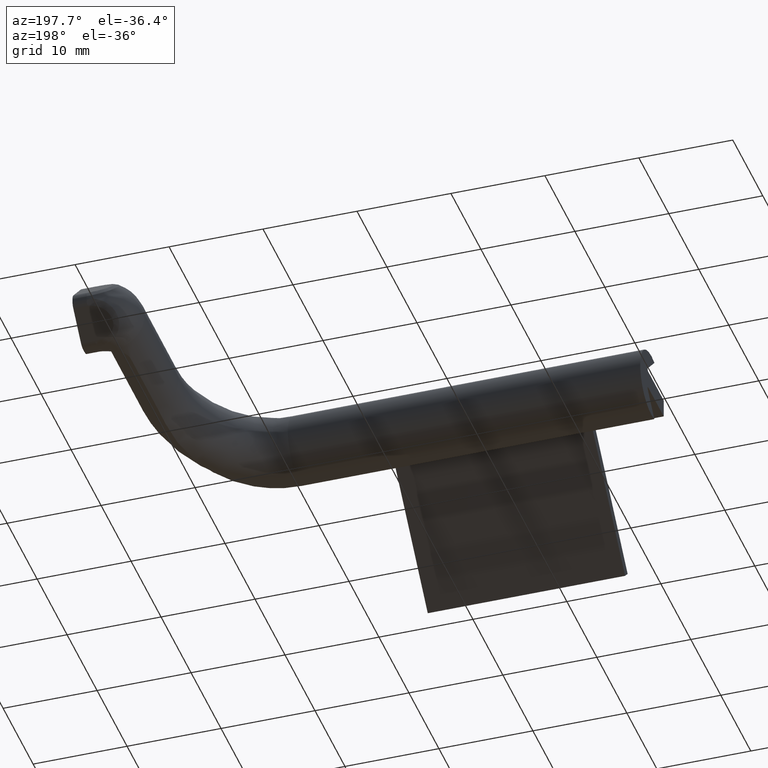
[diagram: clean part render]
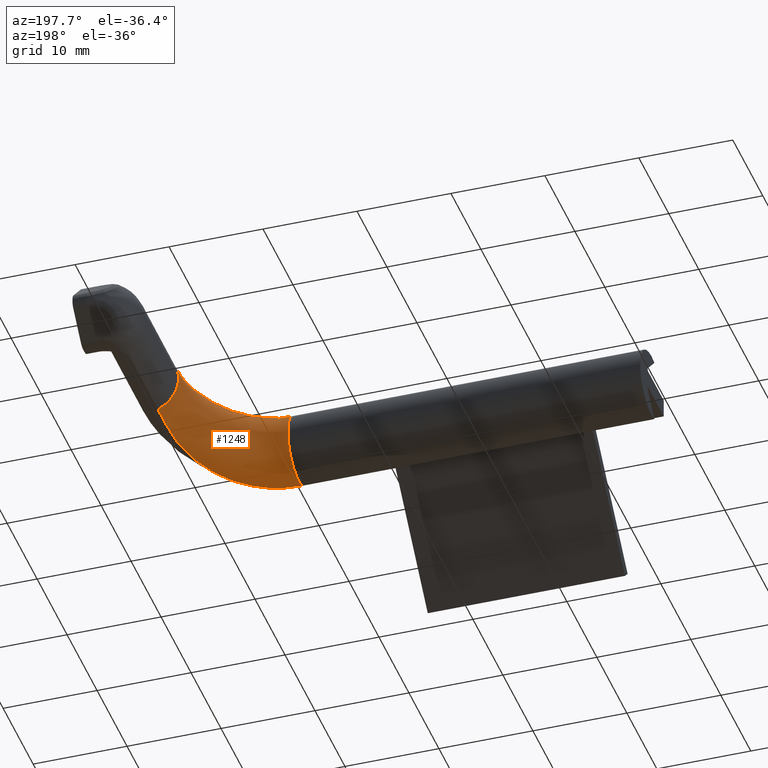
[diagram: same view with one face highlighted and labeled with its STEP entity id]
A machine part, auxiliary view. The second image highlights one B-rep face of the part: STEP entity #1248.
In plain terms, the highlighted face is a freeform B-spline surface patch.
Its self-contained STEP definition (entity closure, byte-faithful):
#19=B_SPLINE_CURVE_WITH_KNOTS('',3,(#2097,#2098,#2099,#2100),
 .UNSPECIFIED.,.F.,.F.,(4,4),(-0.91028131269364,-0.698614414613408),
 .UNSPECIFIED.);
#21=B_SPLINE_CURVE_WITH_KNOTS('',3,(#2126,#2127,#2128,#2129,#2130,#2131,
#2132,#2133,#2134,#2135,#2136,#2137),.UNSPECIFIED.,.F.,.F.,(4,2,2,2,2,4),
(-1.73368814125416,-1.54589514441405,-1.12157386071195,-0.650308672542289,
-0.299827907905871,-9.20285558869693E-9),.UNSPECIFIED.);
#29=B_SPLINE_CURVE_WITH_KNOTS('',3,(#2329,#2330,#2331,#2332,#2333,#2334,
#2335,#2336,#2337,#2338),.UNSPECIFIED.,.F.,.F.,(4,2,2,2,4),(-2.20345509147458,
-1.83863532756005,-1.48197378230446,-0.838537074363588,-0.245859271841657),
 .UNSPECIFIED.);
#31=B_SPLINE_CURVE_WITH_KNOTS('',3,(#2366,#2367,#2368,#2369),
 .UNSPECIFIED.,.F.,.F.,(4,4),(-0.262200994091898,0.),.UNSPECIFIED.);
#32=B_SPLINE_CURVE_WITH_KNOTS('',3,(#2442,#2443,#2444,#2445),
 .UNSPECIFIED.,.F.,.F.,(4,4),(-1.66533453693773E-16,0.135346658092025),
 .UNSPECIFIED.);
#33=B_SPLINE_CURVE_WITH_KNOTS('',3,(#2448,#2449,#2450,#2451),
 .UNSPECIFIED.,.F.,.F.,(4,4),(-1.66533453693773E-16,0.135574662989254),
 .UNSPECIFIED.);
#40=B_SPLINE_SURFACE_WITH_KNOTS('',3,3,((#2372,#2373,#2374,#2375,#2376,
#2377,#2378),(#2379,#2380,#2381,#2382,#2383,#2384,#2385),(#2386,#2387,#2388,
#2389,#2390,#2391,#2392),(#2393,#2394,#2395,#2396,#2397,#2398,#2399),(#2400,
#2401,#2402,#2403,#2404,#2405,#2406),(#2407,#2408,#2409,#2410,#2411,#2412,
#2413),(#2414,#2415,#2416,#2417,#2418,#2419,#2420),(#2421,#2422,#2423,#2424,
#2425,#2426,#2427),(#2428,#2429,#2430,#2431,#2432,#2433,#2434),(#2435,#2436,
#2437,#2438,#2439,#2440,#2441)),.UNSPECIFIED.,.F.,.F.,.F.,(4,1,1,1,1,1,
1,4),(4,1,1,1,4),(-3.68894012902673,-3.16194868202291,-2.63495723501909,
-2.10796578801527,-1.58097434101145,-1.05398289400764,-0.526991447003818,
0.),(-1.66533453693773E-16,0.448798950512828,0.673198425769241,1.12199737628207,
1.5707963267949),.UNSPECIFIED.);
#181=FACE_OUTER_BOUND('',#248,.T.);
#248=EDGE_LOOP('',(#1055,#1056,#1057,#1058,#1059,#1060,#1061,#1062));
#534=CIRCLE('',#1371,3.7);
#535=CIRCLE('',#1372,3.7);
#568=VERTEX_POINT('',#1784);
#610=VERTEX_POINT('',#2094);
#611=VERTEX_POINT('',#2096);
#612=VERTEX_POINT('',#2103);
#625=VERTEX_POINT('',#2326);
#626=VERTEX_POINT('',#2328);
#628=VERTEX_POINT('',#2364);
#629=VERTEX_POINT('',#2446);
#745=EDGE_CURVE('',#611,#610,#19,.T.);
#748=EDGE_CURVE('',#610,#612,#21,.T.);
#776=EDGE_CURVE('',#626,#625,#29,.T.);
#780=EDGE_CURVE('',#625,#628,#31,.T.);
#781=EDGE_CURVE('',#628,#611,#534,.T.);
#782=EDGE_CURVE('',#568,#612,#32,.T.);
#783=EDGE_CURVE('',#629,#568,#535,.T.);
#784=EDGE_CURVE('',#629,#626,#33,.T.);
#1055=ORIENTED_EDGE('',*,*,#780,.T.);
#1056=ORIENTED_EDGE('',*,*,#781,.T.);
#1057=ORIENTED_EDGE('',*,*,#745,.T.);
#1058=ORIENTED_EDGE('',*,*,#748,.T.);
#1059=ORIENTED_EDGE('',*,*,#782,.F.);
#1060=ORIENTED_EDGE('',*,*,#783,.F.);
#1061=ORIENTED_EDGE('',*,*,#784,.T.);
#1062=ORIENTED_EDGE('',*,*,#776,.T.);
#1248=ADVANCED_FACE('',(#181),#40,.T.);
#1371=AXIS2_PLACEMENT_3D('',#2371,#1624,#1625);
#1372=AXIS2_PLACEMENT_3D('',#2447,#1626,#1627);
#1624=DIRECTION('center_axis',(4.1543898746017E-15,-1.,-2.77555756156289E-16));
#1625=DIRECTION('ref_axis',(0.270270270270257,8.55581696095571E-16,0.962784493543619));
#1626=DIRECTION('center_axis',(-1.,-3.86673217053726E-15,-2.77555756156289E-16));
#1627=DIRECTION('ref_axis',(7.77836370672753E-16,-0.270270270270257,0.962784493543619));
#1784=CARTESIAN_POINT('',(54.,3.15685424949245,-3.56230262611139));
#2094=CARTESIAN_POINT('',(64.,17.354297804505,-3.44469206871838));
#2096=CARTESIAN_POINT('',(64.,19.7989898732234,-3.38230690505755));
#2097=CARTESIAN_POINT('Ctrl Pts',(64.,19.7989898732234,-3.38230690505754));
#2098=CARTESIAN_POINT('Ctrl Pts',(64.,18.9716895595569,-3.38230690505754));
#2099=CARTESIAN_POINT('Ctrl Pts',(64.,18.1857769606944,-3.40484625584822));
#2100=CARTESIAN_POINT('Ctrl Pts',(64.,17.354297804505,-3.44469206871838));
#2103=CARTESIAN_POINT('',(55.8221165618849,3.33130042762634,-3.56230262763133));
#2126=CARTESIAN_POINT('Ctrl Pts',(64.,17.354297804505,-3.44469206871838));
#2127=CARTESIAN_POINT('Ctrl Pts',(64.,16.7212207836892,-3.47503013349853));
#2128=CARTESIAN_POINT('Ctrl Pts',(63.9727573536173,16.0883965592997,-3.50352874120964));
#2129=CARTESIAN_POINT('Ctrl Pts',(63.7936839111767,14.0400033543501,-3.58876538001696));
#2130=CARTESIAN_POINT('Ctrl Pts',(63.5260702996662,12.6189070372891,-3.63670824502521));
#2131=CARTESIAN_POINT('Ctrl Pts',(62.620705528881,9.75159337818677,-3.6989597468106));
#2132=CARTESIAN_POINT('Ctrl Pts',(61.9359423854808,8.29097680891677,-3.70809257898597));
#2133=CARTESIAN_POINT('Ctrl Pts',(60.3143942136297,6.06772513339858,-3.67976321075816));
#2134=CARTESIAN_POINT('Ctrl Pts',(59.4884065691023,5.22485957094618,-3.6539052946199));
#2135=CARTESIAN_POINT('Ctrl Pts',(57.6997275051891,3.99393284579956,-3.60148460473291));
#2136=CARTESIAN_POINT('Ctrl Pts',(56.7922673246033,3.57098417017087,-3.57686967536044));
#2137=CARTESIAN_POINT('Ctrl Pts',(55.8221165611164,3.3313004307478,-3.56230262745274));
#2326=CARTESIAN_POINT('',(64.,17.354297804505,3.44469206871838));
#2328=CARTESIAN_POINT('',(55.822116561885,3.33130042762636,3.56230262763133));
#2329=CARTESIAN_POINT('Ctrl Pts',(55.8221165611165,3.33130043074782,3.56230262745275));
#2330=CARTESIAN_POINT('Ctrl Pts',(56.8013664757037,3.57323219042032,3.57700630131074));
#2331=CARTESIAN_POINT('Ctrl Pts',(57.7166057580286,4.00183379716339,3.6019456250735));
#2332=CARTESIAN_POINT('Ctrl Pts',(59.3594266246862,5.13983239742794,3.65015910262434));
#2333=CARTESIAN_POINT('Ctrl Pts',(60.0737845791503,5.83055043952667,3.67240558031309));
#2334=CARTESIAN_POINT('Ctrl Pts',(61.8060010879556,7.99918089738576,3.70965557539283));
#2335=CARTESIAN_POINT('Ctrl Pts',(62.6578755556601,9.72595935080244,3.70371660033779));
#2336=CARTESIAN_POINT('Ctrl Pts',(63.7386289863734,13.4567023109592,3.61369490081654));
#2337=CARTESIAN_POINT('Ctrl Pts',(64.,15.3931109063672,3.53867528593424));
#2338=CARTESIAN_POINT('Ctrl Pts',(64.,17.354297804505,3.44469206871838));
#2364=CARTESIAN_POINT('',(64.,19.7989898732234,3.38230690505755));
#2366=CARTESIAN_POINT('Ctrl Pts',(64.,17.354297804505,3.44469206871838));
#2367=CARTESIAN_POINT('Ctrl Pts',(64.,18.1227334682474,3.40786740097738));
#2368=CARTESIAN_POINT('Ctrl Pts',(64.,18.9249865595837,3.38230690505754));
#2369=CARTESIAN_POINT('Ctrl Pts',(64.,19.7989898732234,3.38230690505754));
#2371=CARTESIAN_POINT('Origin',(65.5,19.7989898732234,0.));
#2372=CARTESIAN_POINT('Ctrl Pts',(54.,3.15685424949245,-3.56230262611139));
#2373=CARTESIAN_POINT('Ctrl Pts',(56.0249111372045,3.15685424949246,-3.56230262611139));
#2374=CARTESIAN_POINT('Ctrl Pts',(59.0257308036474,4.16126817747484,-3.56230262611139));
#2375=CARTESIAN_POINT('Ctrl Pts',(62.9710874319539,7.69775730528474,-3.56230262611139));
#2376=CARTESIAN_POINT('Ctrl Pts',(65.7393359059636,12.6605849847413,-3.56230262611139));
#2377=CARTESIAN_POINT('Ctrl Pts',(66.5,17.4188740134957,-3.56230262611139));
#2378=CARTESIAN_POINT('Ctrl Pts',(66.5,19.7989898732234,-3.56230262611139));
#2379=CARTESIAN_POINT('Ctrl Pts',(54.,3.7826219213591,-3.73796644177932));
#2380=CARTESIAN_POINT('Ctrl Pts',(55.8926047861507,3.7826219213591,-3.73796644177932));
#2381=CARTESIAN_POINT('Ctrl Pts',(58.7032773255911,4.7175347216695,-3.73796644177932));
#2382=CARTESIAN_POINT('Ctrl Pts',(62.4591616907036,8.07754050504595,-3.73796644177932));
#2383=CARTESIAN_POINT('Ctrl Pts',(65.1331345925059,12.8587605300785,-3.73796644177932));
#2384=CARTESIAN_POINT('Ctrl Pts',(65.8742323281334,17.4850271890226,-3.73796644177932));
#2385=CARTESIAN_POINT('Ctrl Pts',(65.8742323281334,19.7989898732234,-3.73796644177932));
#2386=CARTESIAN_POINT('Ctrl Pts',(54.,5.12818959794192,-3.75202014577131));
#2387=CARTESIAN_POINT('Ctrl Pts',(55.6078295888868,5.12818959794192,-3.75202014577131));
#2388=CARTESIAN_POINT('Ctrl Pts',(58.0098680604541,5.91385499439175,-3.75202014577131));
#2389=CARTESIAN_POINT('Ctrl Pts',(61.3580428602476,8.89417200061265,-3.75202014577131));
#2390=CARTESIAN_POINT('Ctrl Pts',(63.8294696848596,13.2848371306979,-3.75202014577131));
#2391=CARTESIAN_POINT('Ctrl Pts',(64.5286646515505,17.6274147876545,-3.75202014577131));
#2392=CARTESIAN_POINT('Ctrl Pts',(64.5286646515505,19.7989898732234,-3.75202014577131));
#2393=CARTESIAN_POINT('Ctrl Pts',(54.,6.88321359470539,-2.75424067234371));
#2394=CARTESIAN_POINT('Ctrl Pts',(55.2365323923621,6.88321359470539,-2.75424067234371));
#2395=CARTESIAN_POINT('Ctrl Pts',(57.1054774469276,7.47412017537424,-2.75424067234371));
#2396=CARTESIAN_POINT('Ctrl Pts',(59.922017697436,9.95930635542188,-2.75424067234371));
#2397=CARTESIAN_POINT('Ctrl Pts',(62.1291812160623,13.840594699157,-2.75424067234371));
#2398=CARTESIAN_POINT('Ctrl Pts',(62.773640654787,17.8130633859169,-2.75424067234371));
#2399=CARTESIAN_POINT('Ctrl Pts',(62.773640654787,19.7989898732234,-2.75424067234371));
#2400=CARTESIAN_POINT('Ctrl Pts',(54.,7.89921256212161,-1.00930721785079));
#2401=CARTESIAN_POINT('Ctrl Pts',(55.0216653118862,7.89921256212161,-1.00930721785079));
#2402=CARTESIAN_POINT('Ctrl Pts',(56.5819314177921,8.3773149230827,-1.00930721785079));
#2403=CARTESIAN_POINT('Ctrl Pts',(59.090787401799,10.5759231833688,-1.00930721785079));
#2404=CARTESIAN_POINT('Ctrl Pts',(61.1449176311749,14.1623430155085,-1.00930721785079));
#2405=CARTESIAN_POINT('Ctrl Pts',(61.7576416873708,17.9204969261548,-1.00930721785079));
#2406=CARTESIAN_POINT('Ctrl Pts',(61.7576416873708,19.7989898732234,-1.00930721785079));
#2407=CARTESIAN_POINT('Ctrl Pts',(54.,7.89832414325397,1.00921571269338));
#2408=CARTESIAN_POINT('Ctrl Pts',(55.0216645111137,7.89832414325396,1.00921571269338));
#2409=CARTESIAN_POINT('Ctrl Pts',(56.582356919058,8.37665839996966,1.00921571269338));
#2410=CARTESIAN_POINT('Ctrl Pts',(59.0912849542261,10.575381413715,1.00921571269338));
#2411=CARTESIAN_POINT('Ctrl Pts',(61.145664140186,14.1620255908568,1.00921571269338));
#2412=CARTESIAN_POINT('Ctrl Pts',(61.7585301062385,17.920497326541,1.00921571269338));
#2413=CARTESIAN_POINT('Ctrl Pts',(61.7585301062385,19.7989898732234,1.00921571269338));
#2414=CARTESIAN_POINT('Ctrl Pts',(54.,6.88402031708311,2.75502570111709));
#2415=CARTESIAN_POINT('Ctrl Pts',(55.2365285905167,6.88402031708311,2.75502570111709));
#2416=CARTESIAN_POINT('Ctrl Pts',(57.1050902982106,7.47471952498391,2.75502570111709));
#2417=CARTESIAN_POINT('Ctrl Pts',(59.9215603947338,9.95979824349189,2.75502570111709));
#2418=CARTESIAN_POINT('Ctrl Pts',(62.1285006137813,13.8408820683519,2.75502570111709));
#2419=CARTESIAN_POINT('Ctrl Pts',(62.7728339324093,17.8130652868396,2.75502570111709));
#2420=CARTESIAN_POINT('Ctrl Pts',(62.7728339324093,19.7989898732234,2.75502570111709));
#2421=CARTESIAN_POINT('Ctrl Pts',(54.,5.12785667958133,3.75152999137416));
#2422=CARTESIAN_POINT('Ctrl Pts',(55.6078039002797,5.12785667958133,3.75152999137416));
#2423=CARTESIAN_POINT('Ctrl Pts',(58.0100231626698,5.91362690480453,3.75152999137416));
#2424=CARTESIAN_POINT('Ctrl Pts',(61.3581984556006,8.8939686351358,3.75152999137416));
#2425=CARTESIAN_POINT('Ctrl Pts',(63.82973406455,13.2847133272262,3.75152999137416));
#2426=CARTESIAN_POINT('Ctrl Pts',(64.5289975699111,17.6274276319581,3.75152999137416));
#2427=CARTESIAN_POINT('Ctrl Pts',(64.5289975699111,19.7989898732234,3.75152999137416));
#2428=CARTESIAN_POINT('Ctrl Pts',(54.,3.7826219213591,3.73796644177932));
#2429=CARTESIAN_POINT('Ctrl Pts',(55.8926283653614,3.7826219213591,3.73796644177932));
#2430=CARTESIAN_POINT('Ctrl Pts',(58.7032813622699,4.71751806929429,3.73796644177932));
#2431=CARTESIAN_POINT('Ctrl Pts',(62.459190345063,8.07754082771446,3.73796644177932));
#2432=CARTESIAN_POINT('Ctrl Pts',(65.1331488584322,12.8587650386378,3.73796644177932));
#2433=CARTESIAN_POINT('Ctrl Pts',(65.8742323281334,17.4850153994172,3.73796644177932));
#2434=CARTESIAN_POINT('Ctrl Pts',(65.8742323281334,19.7989898732234,3.73796644177932));
#2435=CARTESIAN_POINT('Ctrl Pts',(54.,3.15685424949245,3.56230262611139));
#2436=CARTESIAN_POINT('Ctrl Pts',(56.0249111372045,3.15685424949245,3.56230262611139));
#2437=CARTESIAN_POINT('Ctrl Pts',(59.0257308036474,4.16126817747483,3.56230262611139));
#2438=CARTESIAN_POINT('Ctrl Pts',(62.9710874319539,7.69775730528473,3.56230262611139));
#2439=CARTESIAN_POINT('Ctrl Pts',(65.7393359059636,12.6605849847412,3.56230262611139));
#2440=CARTESIAN_POINT('Ctrl Pts',(66.5,17.4188740134957,3.56230262611139));
#2441=CARTESIAN_POINT('Ctrl Pts',(66.5,19.7989898732234,3.56230262611139));
#2442=CARTESIAN_POINT('Ctrl Pts',(54.,3.15685424949245,-3.56230262611139));
#2443=CARTESIAN_POINT('Ctrl Pts',(54.6106630932198,3.15685424949245,-3.56230262611139));
#2444=CARTESIAN_POINT('Ctrl Pts',(55.221258449176,3.21558326666616,-3.56230262611139));
#2445=CARTESIAN_POINT('Ctrl Pts',(55.8221165621814,3.33130042608679,-3.56230262611139));
#2446=CARTESIAN_POINT('',(54.,3.15685424949245,3.56230262611139));
#2447=CARTESIAN_POINT('Origin',(54.,4.1568542494924,0.));
#2448=CARTESIAN_POINT('Ctrl Pts',(54.,3.15685424949245,3.56230262611139));
#2449=CARTESIAN_POINT('Ctrl Pts',(54.6116918158922,3.15685424949245,3.56230262611139));
#2450=CARTESIAN_POINT('Ctrl Pts',(55.2211602484621,3.21795898505967,3.56230262611139));
#2451=CARTESIAN_POINT('Ctrl Pts',(55.8213141758357,3.33540079969023,3.56230262611139));